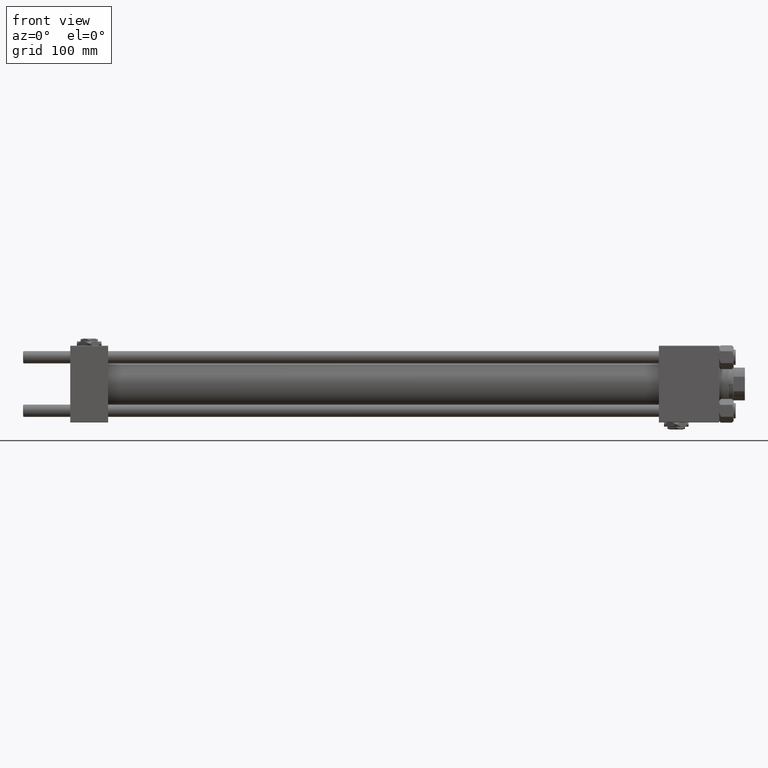
[diagram: clean part render]
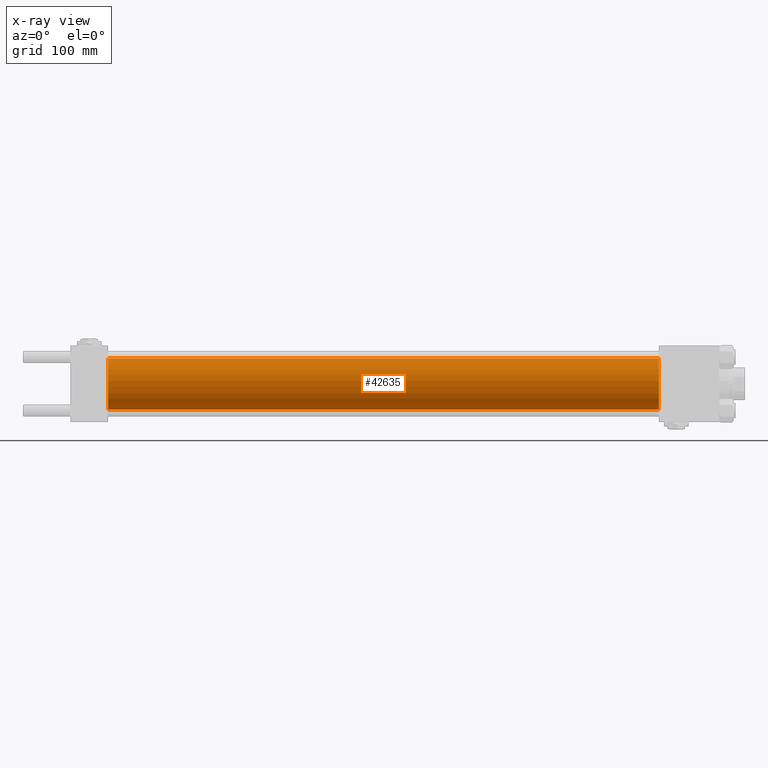
[diagram: x-ray — body ghosted, one internal face saturated and labeled with its STEP entity id]
A machine part, front view, then the same camera in x-ray: the body is ghosted and one INTERNAL B-rep face — a face not visible from any outside direction — is saturated and labeled: STEP entity #42635.
In plain terms, the highlighted cylindrical surface (edge-blend (fillet) strip) has radius 25 mm, axis along (-1, -0, -0).
Its self-contained STEP definition (entity closure, byte-faithful):
#7 = CYLINDRICAL_SURFACE ( 'NONE', #27618, 25.00000000000000000 ) ;
#2010 = AXIS2_PLACEMENT_3D ( 'NONE', #51495, #31576, #48086 ) ;
#2795 = DIRECTION ( 'NONE',  ( 1.000000000000000000, 0.000000000000000000, 0.000000000000000000 ) ) ;
#4109 = ORIENTED_EDGE ( 'NONE', *, *, #9818, .T. ) ;
#5951 = DIRECTION ( 'NONE',  ( 0.000000000000000000, 0.000000000000000000, -1.000000000000000000 ) ) ;
#6084 = VECTOR ( 'NONE', #41275, 1000.000000000000000 ) ;
#9818 = EDGE_CURVE ( 'NONE', #17709, #15587, #16939, .T. ) ;
#10799 = EDGE_CURVE ( 'NONE', #40390, #15587, #47905, .T. ) ;
#14317 = CARTESIAN_POINT ( 'NONE',  ( 37.00000000000000000, 0.000000000000000000, 0.000000000000000000 ) ) ;
#15587 = VERTEX_POINT ( 'NONE', #46778 ) ;
#16172 = CARTESIAN_POINT ( 'NONE',  ( 575.0000000000001137, 3.061616997868383043E-15, -25.00000000000000000 ) ) ;
#16636 = EDGE_CURVE ( 'NONE', #47607, #17709, #33071, .T. ) ;
#16939 = LINE ( 'NONE', #16172, #6084 ) ;
#17050 = DIRECTION ( 'NONE',  ( -1.000000000000000000, -0.000000000000000000, -0.000000000000000000 ) ) ;
#17709 = VERTEX_POINT ( 'NONE', #21853 ) ;
#21119 = ORIENTED_EDGE ( 'NONE', *, *, #30660, .F. ) ;
#21162 = AXIS2_PLACEMENT_3D ( 'NONE', #14317, #2795, #5951 ) ;
#21172 = CARTESIAN_POINT ( 'NONE',  ( 575.0000000000001137, 0.000000000000000000, 25.00000000000000000 ) ) ;
#21853 = CARTESIAN_POINT ( 'NONE',  ( 575.0000000000001137, 3.061616997868383043E-15, -25.00000000000000000 ) ) ;
#27618 = AXIS2_PLACEMENT_3D ( 'NONE', #36125, #47909, #39529 ) ;
#30660 = EDGE_CURVE ( 'NONE', #47607, #40390, #36967, .T. ) ;
#30958 = EDGE_LOOP ( 'NONE', ( #41801, #4109, #35546, #21119 ) ) ;
#31576 = DIRECTION ( 'NONE',  ( 1.000000000000000000, 0.000000000000000000, 0.000000000000000000 ) ) ;
#33071 = CIRCLE ( 'NONE', #2010, 25.00000000000000000 ) ;
#33286 = CARTESIAN_POINT ( 'NONE',  ( 575.0000000000001137, 0.000000000000000000, 25.00000000000000000 ) ) ;
#35098 = FACE_OUTER_BOUND ( 'NONE', #30958, .T. ) ;
#35546 = ORIENTED_EDGE ( 'NONE', *, *, #10799, .F. ) ;
#36125 = CARTESIAN_POINT ( 'NONE',  ( 575.0000000000001137, 0.000000000000000000, 0.000000000000000000 ) ) ;
#36967 = LINE ( 'NONE', #33286, #43315 ) ;
#39529 = DIRECTION ( 'NONE',  ( 0.000000000000000000, 0.000000000000000000, 1.000000000000000000 ) ) ;
#40390 = VERTEX_POINT ( 'NONE', #50439 ) ;
#41275 = DIRECTION ( 'NONE',  ( -1.000000000000000000, -0.000000000000000000, -0.000000000000000000 ) ) ;
#41801 = ORIENTED_EDGE ( 'NONE', *, *, #16636, .T. ) ;
#42635 = ADVANCED_FACE ( 'NONE', ( #35098 ), #7, .F. ) ;
#43315 = VECTOR ( 'NONE', #17050, 1000.000000000000000 ) ;
#46778 = CARTESIAN_POINT ( 'NONE',  ( 37.00000000000000000, 3.061616997868383043E-15, -25.00000000000000000 ) ) ;
#47607 = VERTEX_POINT ( 'NONE', #21172 ) ;
#47905 = CIRCLE ( 'NONE', #21162, 25.00000000000000000 ) ;
#47909 = DIRECTION ( 'NONE',  ( -1.000000000000000000, -0.000000000000000000, -0.000000000000000000 ) ) ;
#48086 = DIRECTION ( 'NONE',  ( 0.000000000000000000, 0.000000000000000000, -1.000000000000000000 ) ) ;
#50439 = CARTESIAN_POINT ( 'NONE',  ( 37.00000000000000000, 0.000000000000000000, 25.00000000000000000 ) ) ;
#51495 = CARTESIAN_POINT ( 'NONE',  ( 575.0000000000001137, 0.000000000000000000, 0.000000000000000000 ) ) ;